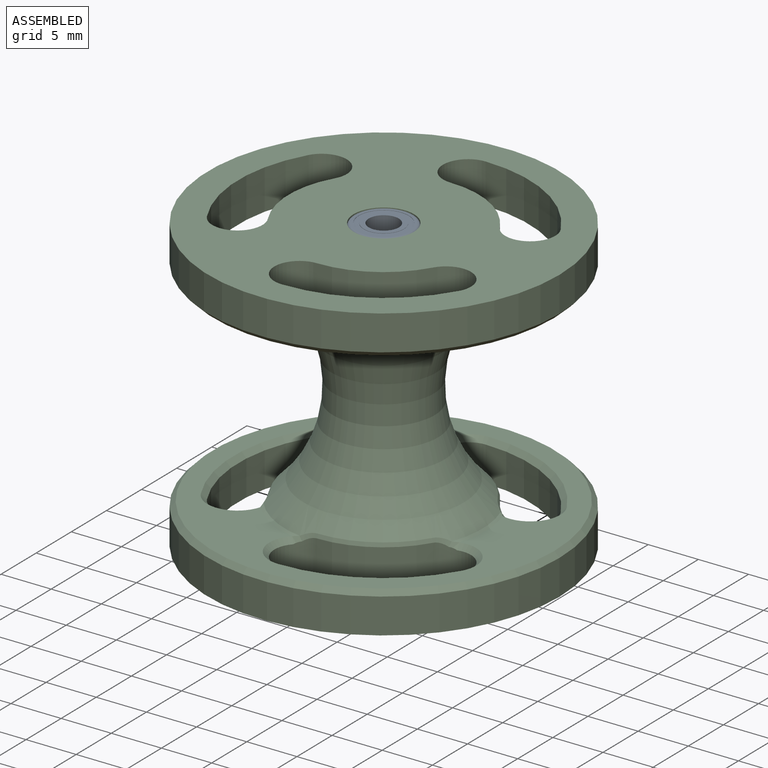
[diagram: assembled view]
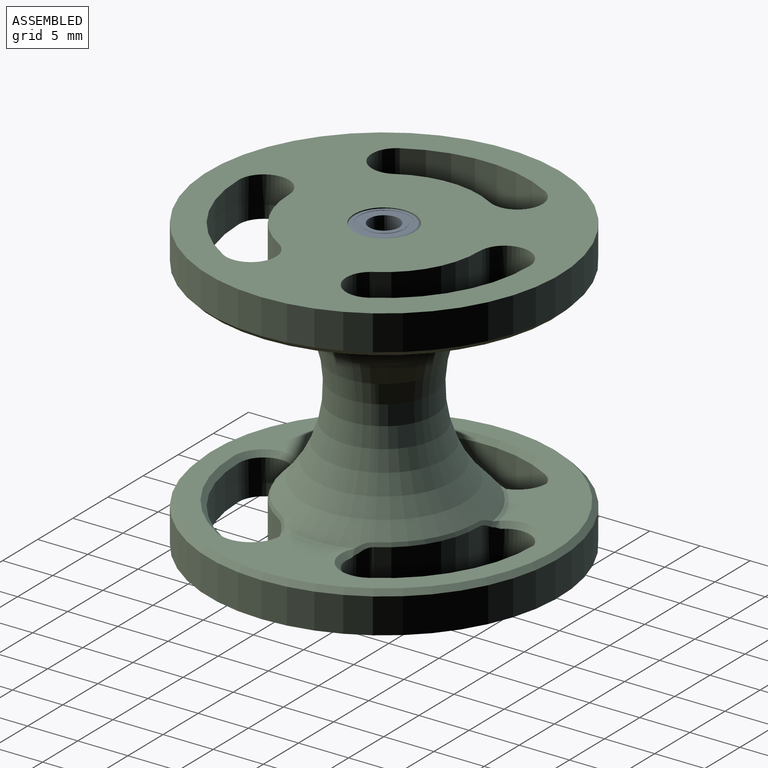
[diagram: assembled view, second angle]
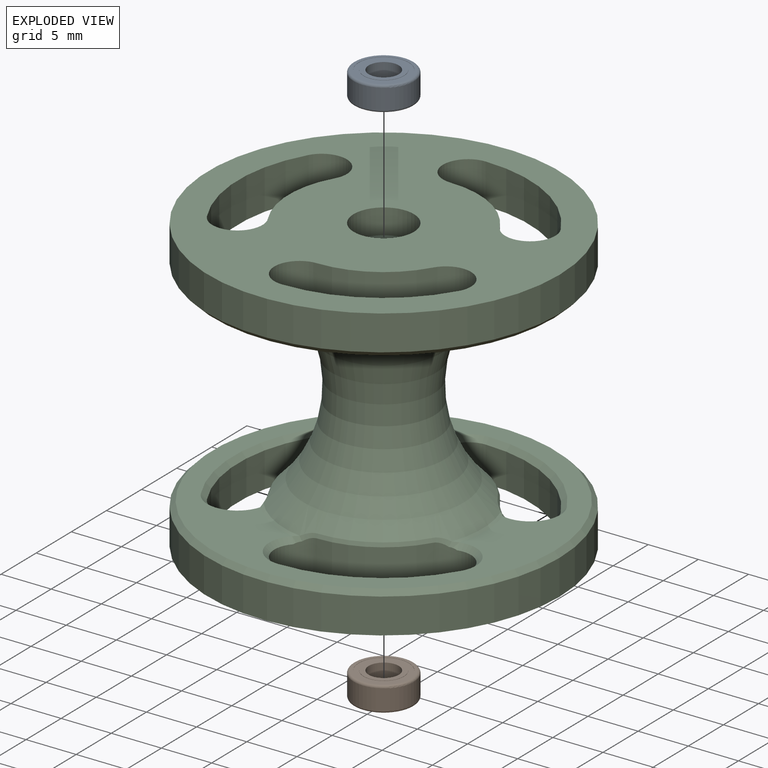
[diagram: exploded view]
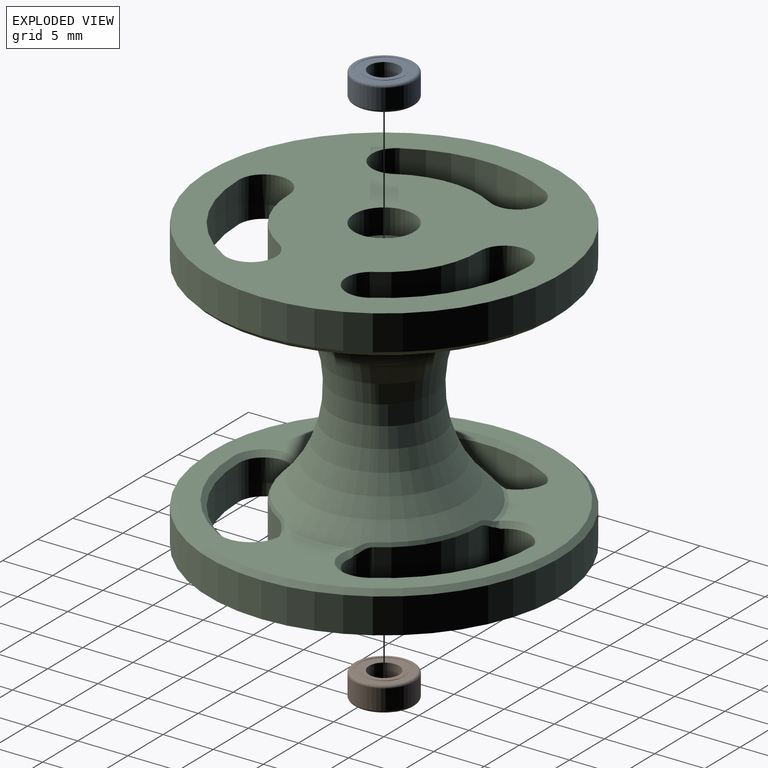
[diagram: exploded view, second angle]
ASSEMBLY  parts=3 mates=4
PART A: 14 faces, bbox 6.5x6.5x2.5 mm
  f0: plane 4x4mm, normal (0,0,-1), area 5.5mm2, adj f2,f9
  f1: plane 4x4mm, normal (0,0,1), area 5.5mm2, adj f2,f6
  f2: cylinder r=1.5mm len=3mm, axis (0,0,-1), area 23.6mm2, adj f0,f1
  f3: cylinder r=3mm len=6mm, axis (0,0,-1), area 37.7mm2, adj f12,f13
  f4: plane 5.5x5.5mm, normal (0,0,1), area 4.1mm2, adj f7,f13
  f5: plane 5.5x5.5mm, normal (0,0,-1), area 4.1mm2, adj f10,f12
  f6: cylinder r=2mm len=4mm, axis (0,0,1), area 0.3mm2, adj f1,f8
  f7: cylinder r=2.5mm len=5mm, axis (0,0,1), area 0.4mm2, adj f4,f8
  f8: plane 5x5mm, normal (0,0,1), area 7.1mm2, adj f6,f7
  f9: cylinder r=2mm len=4mm, axis (0,0,-1), area 0.3mm2, adj f0,f11
  f10: cylinder r=2.5mm len=5mm, axis (0,0,-1), area 0.4mm2, adj f5,f11
  f11: plane 5x5mm, normal (0,0,-1), area 7.1mm2, adj f9,f10
  f12: torus R=2.75mm, axis (0,0,1), area 7.2mm2, adj f3,f5
  f13: torus R=2.75mm, axis (0,0,1), area 7.2mm2, adj f3,f4
PART B: same geometry as A
PART C: 65 faces, bbox 40.1x40.1x29 mm
  f0: cylinder r=1.5mm len=24mm, axis (0,0,-1), area 226.2mm2, adj f62,f64
  f1: cylinder r=17.5mm len=35mm, axis (0,0,-1), area 384.8mm2, adj f7,f59
  f2: plane 34x34mm, normal (0,0,1), area 317.5mm2, adj f32,f35,f38,f39,f42,f43,f46,f49
  f3: torus R=18.52mm, axis (0,0,-1), area 955.7mm2, adj f5,f21,f22,f23,f25,f26,f27,f29
  f4: cylinder r=17.5mm len=35mm, axis (0,0,-1), area 384.8mm2, adj f6,f60
  f5: plane 34x34mm, normal (0,0,-1), area 364.4mm2, adj f3,f20,f21,f23,f24,f25,f26,f28
  f6: plane 35x35mm, normal (0,0,1), area 686.4mm2, adj f4,f20,f21,f22,f23,f24,f25,f26
  f7: plane 35x35mm, normal (0,0,-1), area 686.4mm2, adj f1,f8,f9,f10,f11,f12,f13,f14
  f8: cylinder r=2.5mm len=4.67mm, axis (0,0,-1), area 28.2mm2, adj f7,f9,f11,f43,f44,f47
  f9: cylinder r=9.5mm len=8.23mm, axis (0,0,-1), area 41.8mm2, adj f7,f8,f10,f40
  f10: cylinder r=2.5mm len=5mm, axis (0,0,-1), area 28.2mm2, adj f7,f9,f11,f33,f35,f36
  f11: cylinder r=14.5mm len=12.56mm, axis (0,0,-1), area 53.1mm2, adj f7,f8,f10,f39
  f12: cylinder r=9.5mm len=9.5mm, axis (0,0,-1), area 41.8mm2, adj f7,f13,f15,f41
  f13: cylinder r=2.5mm len=4.67mm, axis (0,0,-1), area 28.2mm2, adj f7,f12,f14,f45,f46,f48
  f14: cylinder r=14.5mm len=14.5mm, axis (0,0,-1), area 53.1mm2, adj f7,f13,f15,f42
  f15: cylinder r=2.5mm len=4.67mm, axis (0,0,-1), area 28.2mm2, adj f7,f12,f14,f34,f37,f38
  f16: cylinder r=9.5mm len=8.23mm, axis (0,0,-1), area 41.8mm2, adj f7,f17,f19,f58
  f17: cylinder r=2.5mm len=4.67mm, axis (0,0,-1), area 28.2mm2, adj f7,f16,f18,f50,f54,f56
  f18: cylinder r=14.5mm len=12.56mm, axis (0,0,-1), area 53.1mm2, adj f7,f17,f19,f49
  f19: cylinder r=2.5mm len=5mm, axis (0,0,-1), area 28.2mm2, adj f7,f16,f18,f53,f55,f57
  f20: cylinder r=14.5mm len=12.56mm, axis (0,0,-1), area 60.7mm2, adj f5,f6,f21,f23
  f21: cylinder r=2.5mm len=5mm, axis (0,0,-1), area 31.7mm2, adj f3,f5,f6,f20,f22
  f22: cylinder r=9.5mm len=8.23mm, axis (0,0,-1), area 44mm2, adj f3,f6,f21,f23
  f23: cylinder r=2.5mm len=4.67mm, axis (0,0,-1), area 31.7mm2, adj f3,f5,f6,f20,f22
  f24: cylinder r=14.5mm len=14.5mm, axis (0,0,-1), area 60.7mm2, adj f5,f6,f25,f26
  f25: cylinder r=2.5mm len=4.67mm, axis (0,0,-1), area 31.7mm2, adj f3,f5,f6,f24,f27
  f26: cylinder r=2.5mm len=4.67mm, axis (0,0,-1), area 31.7mm2, adj f3,f5,f6,f24,f27
  f27: cylinder r=9.5mm len=9.5mm, axis (0,0,-1), area 44mm2, adj f3,f6,f25,f26
  f28: cylinder r=14.5mm len=12.56mm, axis (0,0,-1), area 60.7mm2, adj f5,f6,f29,f30
  f29: cylinder r=2.5mm len=5mm, axis (0,0,-1), area 31.7mm2, adj f3,f5,f6,f28,f31
  f30: cylinder r=2.5mm len=4.67mm, axis (0,0,-1), area 31.7mm2, adj f3,f5,f6,f28,f31
  f31: cylinder r=9.5mm len=8.23mm, axis (0,0,-1), area 44mm2, adj f3,f6,f29,f30
  f32: cone r=9.86mm half-angle=70.1deg, axis (0,0,-1), area 2.3mm2, adj f2,f3,f33,f34
  f33: bspline ~0.92x0.63mm, area 0.4mm2, adj f10,f32,f35,f36
  f34: bspline ~0.84x0.63mm, area 0.4mm2, adj f15,f32,f37,f38
  f35: cone r=2.5mm half-angle=45deg, axis (0,0,1), area 4.5mm2, adj f2,f10,f33,f39
  f36: bspline ~1.58x0.84mm, area 0.7mm2, adj f3,f10,f33,f40
  f37: bspline ~1.64x0.88mm, area 0.7mm2, adj f3,f15,f34,f41
  f38: cone r=2.5mm half-angle=45deg, axis (0,0,1), area 4.5mm2, adj f2,f15,f34,f42
  f39: cone r=14.5mm half-angle=45deg, axis (0,0,1), area 10.9mm2, adj f2,f11,f35,f43
  f40: cone r=9.34mm half-angle=23.6deg, axis (0,0,-1), area 4mm2, adj f3,f9,f36,f44
  f41: cone r=9.34mm half-angle=23.6deg, axis (0,0,-1), area 4mm2, adj f3,f12,f37,f45
  f42: cone r=14.5mm half-angle=45deg, axis (0,0,1), area 10.9mm2, adj f2,f14,f38,f46
  f43: cone r=2.5mm half-angle=45deg, axis (0,0,1), area 4.5mm2, adj f2,f8,f39,f47
  f44: bspline ~1.29x1.19mm, area 0.7mm2, adj f3,f8,f40,f47
  f45: bspline ~1.64x0.89mm, area 0.7mm2, adj f3,f13,f41,f48
  f46: cone r=2.5mm half-angle=45deg, axis (0,0,1), area 4.5mm2, adj f2,f13,f42,f48
  f47: bspline ~0.75x0.66mm, area 0.4mm2, adj f8,f43,f44,f51
  f48: bspline ~0.84x0.63mm, area 0.4mm2, adj f13,f45,f46,f52
  f49: cone r=14.5mm half-angle=45deg, axis (0,0,1), area 10.9mm2, adj f2,f18,f50,f53
  f50: cone r=2.5mm half-angle=45deg, axis (0,0,1), area 4.5mm2, adj f2,f17,f49,f54
  f51: cone r=9.86mm half-angle=70.1deg, axis (0,0,-1), area 2.3mm2, adj f2,f3,f47,f54
  f52: cone r=9.86mm half-angle=70.1deg, axis (0,0,-1), area 2.3mm2, adj f2,f3,f48,f55
  f53: cone r=2.5mm half-angle=45deg, axis (0,0,1), area 4.5mm2, adj f2,f19,f49,f55
  f54: bspline ~0.75x0.66mm, area 0.4mm2, adj f17,f50,f51,f56
  f55: bspline ~0.92x0.63mm, area 0.4mm2, adj f19,f52,f53,f57
  f56: bspline ~1.25x1.13mm, area 0.7mm2, adj f3,f17,f54,f58
  f57: bspline ~1.64x0.88mm, area 0.7mm2, adj f3,f19,f55,f58
  f58: cone r=9.34mm half-angle=23.6deg, axis (0,0,-1), area 4mm2, adj f3,f16,f56,f57
  f59: cone r=17mm half-angle=45deg, axis (0,0,-1), area 76.6mm2, adj f1,f2
  f60: cone r=17.5mm half-angle=45deg, axis (0,0,1), area 76.6mm2, adj f4,f5
  f61: cylinder r=3mm len=6mm, axis (0,0,1), area 47.1mm2, adj f6,f62
  f62: plane 6x6mm, normal (0,0,1), area 21.2mm2, adj f0,f61
  f63: cylinder r=3mm len=6mm, axis (0,0,-1), area 47.1mm2, adj f7,f64
  f64: plane 6x6mm, normal (0,0,-1), area 21.2mm2, adj f0,f63
PLACE A t=(40.39,6.81,24.5)mm
PLACE B t=(40.39,6.81,-2)mm
PLACE C t=(40.39,6.81,0)mm
MATE cylindrical A.f2 <-> C.f61  axis (0,0,-1) through (40.39,6.81,25.75)mm
MATE planar A.f10 <-> C.f61  axis (0,0,-1) through (40.39,6.81,24.5)mm
MATE planar B.f7 <-> C.f63  axis (0,0,1) through (40.39,6.81,0.5)mm
MATE cylindrical B.f3 <-> C.f63  axis (0,0,-1) through (40.39,6.81,-0.75)mm
